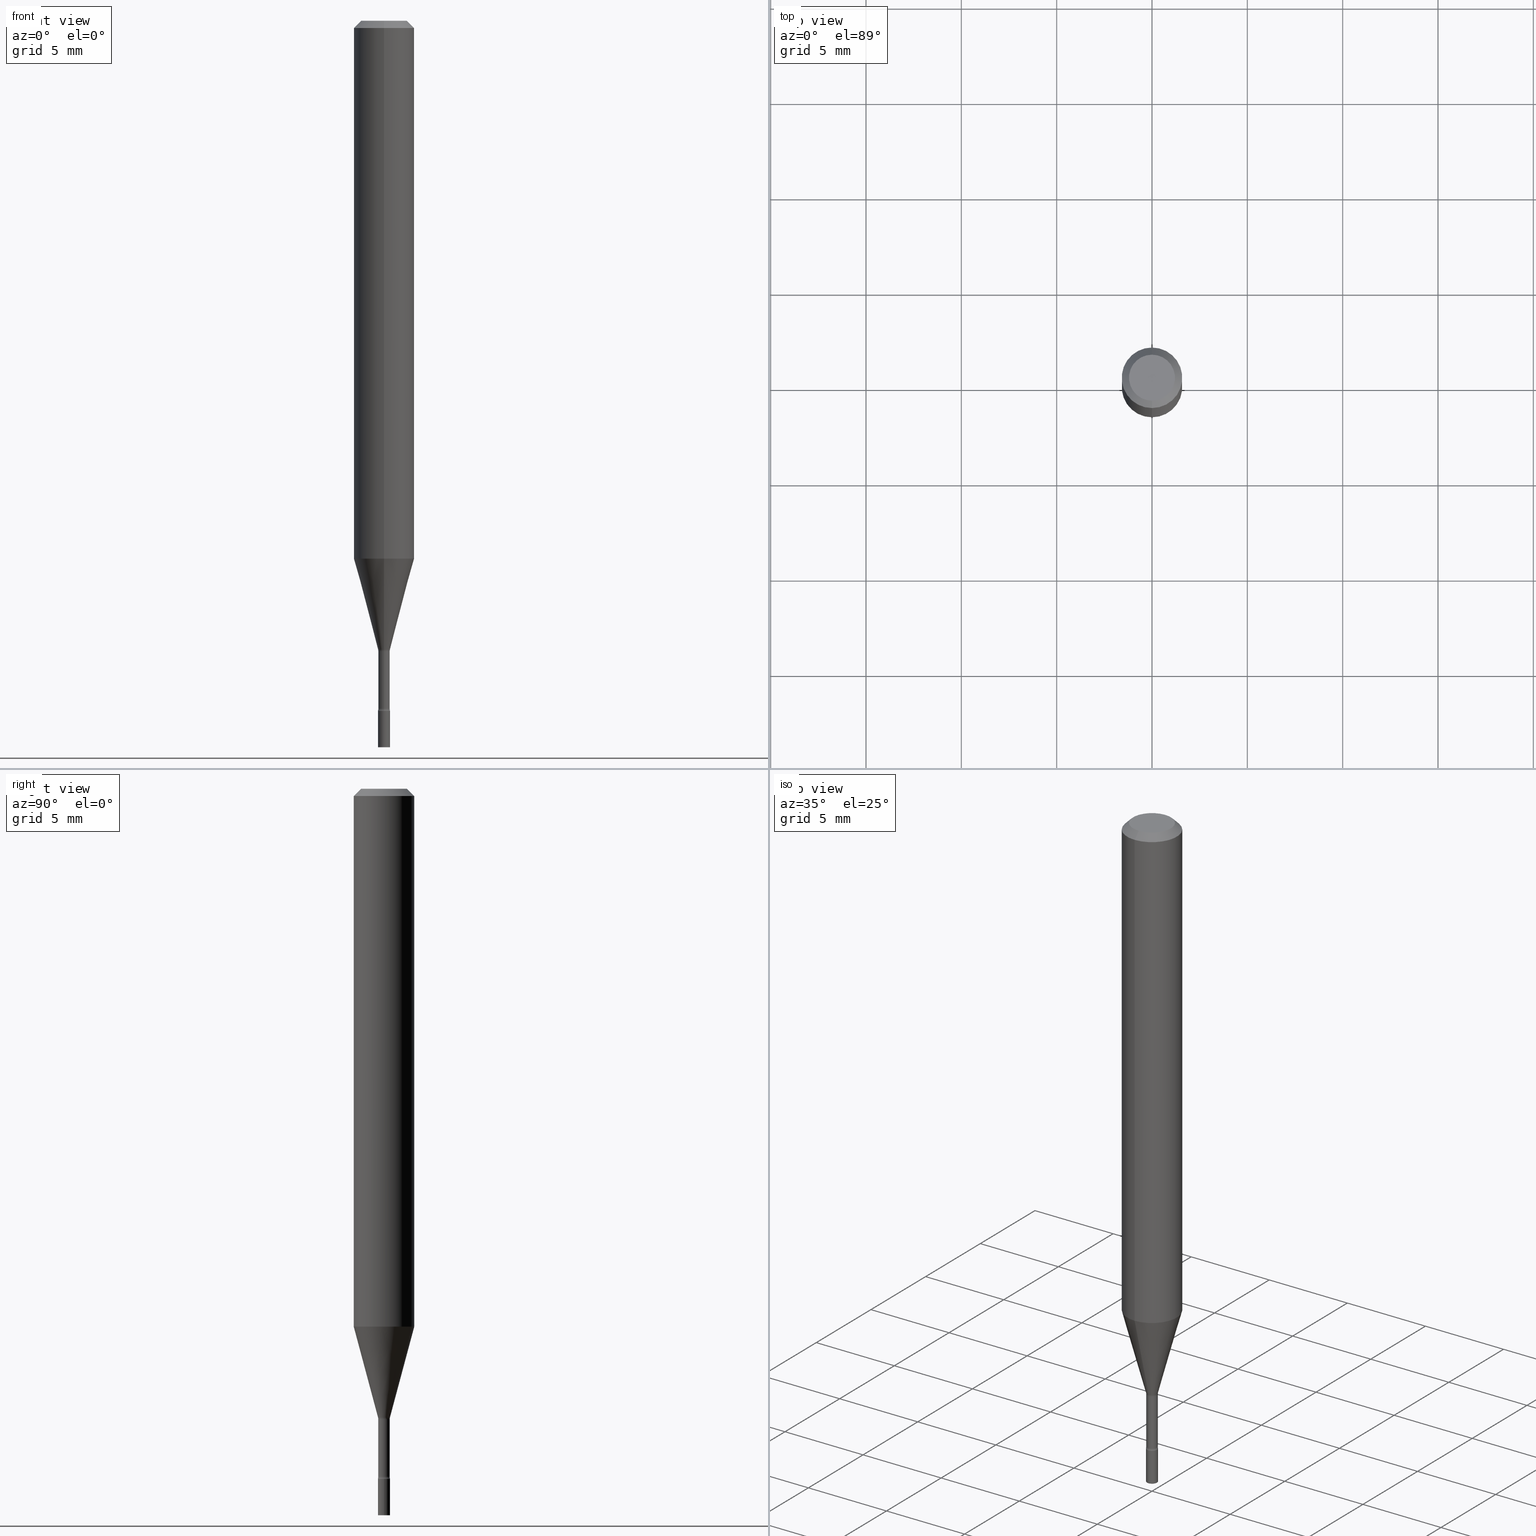
[diagram: canonical four-view strip — front | top / right | iso, engineering-drawing reading convention]
A machine part, canonical four-view strip (front | top / right | iso — engineering-drawing reading convention). The complete STEP part file that produces these views, byte-faithful:
ISO-10303-21;
HEADER;
FILE_DESCRIPTION (( 'STEP AP203' ),
    '1' );
FILE_NAME ('01314.STEP',
    '2024-03-08T21:13:38',
    ( '' ),
    ( '' ),
    'SwSTEP 2.0',
    'SolidWorks 2023',
    '' );
FILE_SCHEMA (( 'CONFIG_CONTROL_DESIGN' ));
ENDSEC;

DATA;
#1 = PERSON_AND_ORGANIZATION_ROLE ( 'creator' ) ;
#2 = ORIENTED_EDGE ( 'NONE', *, *, #278, .F. ) ;
#3 = ADVANCED_FACE ( 'NONE', ( #213 ), #429, .F. ) ;
#4 = PERSON_AND_ORGANIZATION_ROLE ( 'creator' ) ;
#5 = AXIS2_PLACEMENT_3D ( 'NONE', #328, #295, #464 ) ;
#6 = ADVANCED_FACE ( 'NONE', ( #390 ), #345, .T. ) ;
#7 = ORIENTED_EDGE ( 'NONE', *, *, #117, .T. ) ;
#8 = VERTEX_POINT ( 'NONE', #392 ) ;
#9 = DIRECTION ( 'NONE',  ( -6.982962677686265922E-15, -1.000000000000000000, 3.483106191921935554E-15 ) ) ;
#10 = VECTOR ( 'NONE', #503, 39.37007874015748143 ) ;
#11 = SECURITY_CLASSIFICATION_LEVEL ( 'unclassified' ) ;
#12 = APPLICATION_CONTEXT ( 'configuration controlled 3d designs of mechanical parts and assemblies' ) ;
#13 = APPROVAL_PERSON_ORGANIZATION ( #463, #410, #252 ) ;
#14 = ORIENTED_EDGE ( 'NONE', *, *, #180, .T. ) ;
#15 = ORIENTED_EDGE ( 'NONE', *, *, #451, .F. ) ;
#16 = ORIENTED_EDGE ( 'NONE', *, *, #207, .T. ) ;
#17 = CARTESIAN_POINT ( 'NONE',  ( 0.01250000000000000069, -5.324509041735797299E-15, -1.500000000000000222 ) ) ;
#18 = PRODUCT_DEFINITION ( 'UNKNOWN', '', #231, #190 ) ;
#19 = AXIS2_PLACEMENT_3D ( 'NONE', #509, #38, #305 ) ;
#20 = DIMENSIONAL_EXPONENTS ( 1.000000000000000000, 0.000000000000000000, 0.000000000000000000, 0.000000000000000000, 0.000000000000000000, 0.000000000000000000, 0.000000000000000000 ) ;
#21 = AXIS2_PLACEMENT_3D ( 'NONE', #339, #225, #516 ) ;
#22 = DIRECTION ( 'NONE',  ( 1.000000000000000000, -6.982962677686267499E-15, 4.876176775795936353E-29 ) ) ;
#23 = DIRECTION ( 'NONE',  ( -2.445468806185136597E-29, 3.491481338843145583E-15, 1.000000000000000000 ) ) ;
#24 = DIRECTION ( 'NONE',  ( -2.445421247527529445E-29, 3.491549445547709881E-15, 1.000000000000000000 ) ) ;
#25 = ADVANCED_FACE ( 'NONE', ( #150 ), #468, .T. ) ;
#26 = DIRECTION ( 'NONE',  ( -2.445421247527529445E-29, 3.491549445547709881E-15, 1.000000000000000000 ) ) ;
#27 = CARTESIAN_POINT ( 'NONE',  ( 3.183938729182273285E-29, -4.545820674074166863E-15, -1.301974787463811012 ) ) ;
#28 = LINE ( 'NONE', #480, #368 ) ;
#29 = CARTESIAN_POINT ( 'NONE',  ( 2.715880977445467390E-29, -3.877709302869931767E-15, -1.110598421515879952 ) ) ;
#30 = DIRECTION ( 'NONE',  ( -2.445468806185136597E-29, 3.491481338843145583E-15, 1.000000000000000000 ) ) ;
#31 = DIRECTION ( 'NONE',  ( -1.807323732225328167E-15, -0.2588190451025179084, 0.9659258262890690894 ) ) ;
#32 = DIRECTION ( 'NONE',  ( -2.445421247527529445E-29, 3.491549445547709881E-15, 1.000000000000000000 ) ) ;
#33 = AXIS2_PLACEMENT_3D ( 'NONE', #347, #226, #35 ) ;
#34 = CARTESIAN_POINT ( 'NONE',  ( 2.715880977445467390E-29, -3.877709302869931767E-15, -1.110598421515879952 ) ) ;
#35 = DIRECTION ( 'NONE',  ( -6.982962677686266711E-15, -1.000000000000000000, 3.491549445547709487E-15 ) ) ;
#36 = CC_DESIGN_APPROVAL ( #376, ( #18 ) ) ;
#37 = CARTESIAN_POINT ( 'NONE',  ( 2.656048273965166204E-16, 0.01226111260565944903, -1.298092501787273090 ) ) ;
#38 = DIRECTION ( 'NONE',  ( -2.445421247527529445E-29, 3.491549445547709881E-15, 1.000000000000000000 ) ) ;
#39 = COORDINATED_UNIVERSAL_TIME_OFFSET ( 5, 0, .BEHIND. ) ;
#40 = AXIS2_PLACEMENT_3D ( 'NONE', #140, #259, #433 ) ;
#41 = ORIENTED_EDGE ( 'NONE', *, *, #137, .F. ) ;
#42 = ADVANCED_FACE ( 'NONE', ( #103 ), #375, .T. ) ;
#43 = ORIENTED_EDGE ( 'NONE', *, *, #508, .T. ) ;
#44 = EDGE_CURVE ( 'NONE', #80, #8, #28, .T. ) ;
#45 = APPLICATION_PROTOCOL_DEFINITION ( 'international standard', 'config_control_design', 1994, #193 ) ;
#46 = ORIENTED_EDGE ( 'NONE', *, *, #137, .T. ) ;
#47 = APPROVAL_STATUS ( 'not_yet_approved' ) ;
#48 = AXIS2_PLACEMENT_3D ( 'NONE', #272, #30, #188 ) ;
#49 = TOROIDAL_SURFACE ( 'NONE', #257, 0.02675000000000001335, 0.01500000000000001679 ) ;
#50 = ORIENTED_EDGE ( 'NONE', *, *, #107, .T. ) ;
#51 = MANIFOLD_SOLID_BREP ( 'Body-Move/Copy2[1]', #248 ) ;
#52 = PERSON_AND_ORGANIZATION_ROLE ( 'design_supplier' ) ;
#53 = ORIENTED_EDGE ( 'NONE', *, *, #200, .F. ) ;
#54 = CC_DESIGN_APPROVAL ( #410, ( #402 ) ) ;
#55 = ORIENTED_EDGE ( 'NONE', *, *, #249, .F. ) ;
#56 = ORIENTED_EDGE ( 'NONE', *, *, #221, .F. ) ;
#57 = EDGE_CURVE ( 'NONE', #325, #80, #343, .T. ) ;
#58 = ORIENTED_EDGE ( 'NONE', *, *, #94, .T. ) ;
#59 = AXIS2_PLACEMENT_3D ( 'NONE', #77, #68, #224 ) ;
#60 = AXIS2_PLACEMENT_3D ( 'NONE', #71, #32, #155 ) ;
#61 = CYLINDRICAL_SURFACE ( 'NONE', #138, 0.06250000000000000000 ) ;
#62 = DIRECTION ( 'NONE',  ( -2.445421247527529445E-29, 3.491549445547709881E-15, 1.000000000000000000 ) ) ;
#63 = CARTESIAN_POINT ( 'NONE',  ( 0.000000000000000000, 0.000000000000000000, 0.000000000000000000 ) ) ;
#64 = PLANE ( 'NONE',  #240 ) ;
#65 = CARTESIAN_POINT ( 'NONE',  ( -0.01250000000000000069, 8.881784197001252816E-17, -6.148668862818633278E-31 ) ) ;
#66 = PLANE ( 'NONE',  #288 ) ;
#67 = DIRECTION ( 'NONE',  ( 1.000000000000000000, -6.982962677686294321E-15, 0.000000000000000000 ) ) ;
#68 = DIRECTION ( 'NONE',  ( 2.445421247527529445E-29, -3.491549445547709881E-15, -1.000000000000000000 ) ) ;
#69 = CIRCLE ( 'NONE', #212, 0.01500000000000002720 ) ;
#70 = APPROVAL ( #47, 'UNSPECIFIED' ) ;
#71 = CARTESIAN_POINT ( 'NONE',  ( 7.069878102696338504E-46, -1.009430542673053310E-31, -2.891067585940220905E-17 ) ) ;
#72 = AXIS2_PLACEMENT_3D ( 'NONE', #106, #177, #22 ) ;
#73 = DIRECTION ( 'NONE',  ( -1.000000000000000000, 6.982962677686265922E-15, -4.876176775795935793E-29 ) ) ;
#74 = AXIS2_PLACEMENT_3D ( 'NONE', #261, #220, #431 ) ;
#75 = CIRCLE ( 'NONE', #136, 0.06250000000000000000 ) ;
#76 = DIRECTION ( 'NONE',  ( -2.445421247527529445E-29, 3.491549445547709881E-15, 1.000000000000000000 ) ) ;
#77 = CARTESIAN_POINT ( 'NONE',  ( 3.668131871291301454E-31, -5.237324168321575718E-17, -0.01500000000000003067 ) ) ;
#78 =( GEOMETRIC_REPRESENTATION_CONTEXT ( 3 ) GLOBAL_UNCERTAINTY_ASSIGNED_CONTEXT ( ( #385 ) ) GLOBAL_UNIT_ASSIGNED_CONTEXT ( ( #486, #408, #161 ) ) REPRESENTATION_CONTEXT ( 'NONE', 'WORKASPACE' ) );
#79 = PERSON_AND_ORGANIZATION_ROLE ( 'classification_officer' ) ;
#80 = VERTEX_POINT ( 'NONE', #230 ) ;
#81 = LENGTH_MEASURE_WITH_UNIT ( LENGTH_MEASURE( 0.02539999999999999897 ), #360 );
#82 = EDGE_LOOP ( 'NONE', ( #53, #170, #46, #2 ) ) ;
#83 = EDGE_CURVE ( 'NONE', #318, #158, #399, .T. ) ;
#84 = APPROVAL_STATUS ( 'not_yet_approved' ) ;
#85 = ORIENTED_EDGE ( 'NONE', *, *, #183, .F. ) ;
#86 = APPROVAL_DATE_TIME ( #491, #70 ) ;
#87 = PERSON_AND_ORGANIZATION ( #355, #423 ) ;
#88 = AXIS2_PLACEMENT_3D ( 'NONE', #250, #171, #336 ) ;
#89 = VECTOR ( 'NONE', #469, 39.37007874015748143 ) ;
#90 = ORIENTED_EDGE ( 'NONE', *, *, #419, .F. ) ;
#91 = ORIENTED_EDGE ( 'NONE', *, *, #349, .T. ) ;
#92 = MANIFOLD_SOLID_BREP ( 'Body-Move/Copy2[2]', #274 ) ;
#93 = EDGE_LOOP ( 'NONE', ( #417, #55 ) ) ;
#94 = EDGE_CURVE ( 'NONE', #206, #210, #181, .T. ) ;
#95 = ORIENTED_EDGE ( 'NONE', *, *, #461, .F. ) ;
#96 = EDGE_CURVE ( 'NONE', #445, #277, #297, .T. ) ;
#97 = CARTESIAN_POINT ( 'NONE',  ( 0.01250000000000000069, -5.062647941322562298E-15, -1.425000000000000266 ) ) ;
#98 = CONICAL_SURFACE ( 'NONE', #59, 0.06250000000000000000, 0.7853981633974483900 ) ;
#99 = CC_DESIGN_APPROVAL ( #70, ( #231 ) ) ;
#100 = LINE ( 'NONE', #442, #10 ) ;
#101 = DIRECTION ( 'NONE',  ( -2.445421247527529445E-29, 3.491549445547709881E-15, 1.000000000000000000 ) ) ;
#102 = DIRECTION ( 'NONE',  ( -6.982962677686265922E-15, -1.000000000000000000, 3.491549445547710276E-15 ) ) ;
#103 = FACE_OUTER_BOUND ( 'NONE', #280, .T. ) ;
#104 = CARTESIAN_POINT ( 'NONE',  ( 8.728703347111501591E-17, 0.01249999999999476356, -1.500000000000000222 ) ) ;
#105 = DIRECTION ( 'NONE',  ( -1.000000000000000000, 6.982962677686265922E-15, -4.883557194083112901E-29 ) ) ;
#106 = CARTESIAN_POINT ( 'NONE',  ( 0.000000000000000000, 0.000000000000000000, 0.000000000000000000 ) ) ;
#107 = EDGE_CURVE ( 'NONE', #362, #372, #186, .T. ) ;
#108 = DIRECTION ( 'NONE',  ( 1.000000000000000000, -6.982962677686265922E-15, 4.876176775795935793E-29 ) ) ;
#109 = CYLINDRICAL_SURFACE ( 'NONE', #293, 0.01174999999999999656 ) ;
#110 = DIRECTION ( 'NONE',  ( -6.982962677686265922E-15, -1.000000000000000000, 0.000000000000000000 ) ) ;
#111 = CIRCLE ( 'NONE', #5, 0.01174999999999999482 ) ;
#112 = CIRCLE ( 'NONE', #483, 0.06250000000000000000 ) ;
#113 = CARTESIAN_POINT ( 'NONE',  ( -4.287811248607203282E-16, -0.06250000000000005551, -0.01499999999999981209 ) ) ;
#114 = DIRECTION ( 'NONE',  ( -2.445468806185136597E-29, 3.491481338843145583E-15, 1.000000000000000000 ) ) ;
#115 = FACE_OUTER_BOUND ( 'NONE', #244, .T. ) ;
#116 = PERSON_AND_ORGANIZATION ( #355, #423 ) ;
#117 = EDGE_CURVE ( 'NONE', #416, #204, #268, .T. ) ;
#118 = ORIENTED_EDGE ( 'NONE', *, *, #508, .F. ) ;
#119 = ORIENTED_EDGE ( 'NONE', *, *, #131, .F. ) ;
#120 = AXIS2_PLACEMENT_3D ( 'NONE', #219, #337, #102 ) ;
#121 = EDGE_LOOP ( 'NONE', ( #292, #119, #243, #50 ) ) ;
#122 = CIRCLE ( 'NONE', #513, 0.01226111260566398187 ) ;
#123 = LOCAL_TIME ( 16, 13, 38.00000000000000000, #159 ) ;
#124 = PERSON_AND_ORGANIZATION ( #355, #423 ) ;
#125 = ADVANCED_FACE ( 'NONE', ( #115 ), #466, .F. ) ;
#126 = APPROVAL_DATE_TIME ( #208, #410 ) ;
#127 = AXIS2_PLACEMENT_3D ( 'NONE', #434, #114, #67 ) ;
#128 = EDGE_LOOP ( 'NONE', ( #141, #460, #58, #95 ) ) ;
#129 = CALENDAR_DATE ( 2024, 8, 3 ) ;
#130 = VERTEX_POINT ( 'NONE', #273 ) ;
#131 = EDGE_CURVE ( 'NONE', #325, #416, #122, .T. ) ;
#132 = ORIENTED_EDGE ( 'NONE', *, *, #117, .F. ) ;
#133 = ADVANCED_FACE ( 'NONE', ( #340 ), #98, .T. ) ;
#134 = EDGE_CURVE ( 'NONE', #446, #322, #324, .T. ) ;
#135 = CIRCLE ( 'NONE', #436, 0.01250000000000000069 ) ;
#136 = AXIS2_PLACEMENT_3D ( 'NONE', #174, #505, #9 ) ;
#137 = EDGE_CURVE ( 'NONE', #372, #362, #449, .T. ) ;
#138 = AXIS2_PLACEMENT_3D ( 'NONE', #217, #26, #178 ) ;
#139 = DIRECTION ( 'NONE',  ( -2.445421247527529445E-29, 3.491549445547709881E-15, 1.000000000000000000 ) ) ;
#140 = CARTESIAN_POINT ( 'NONE',  ( 1.900701818158615798E-16, 0.02674999999999505204, -1.420316251501201332 ) ) ;
#141 = ORIENTED_EDGE ( 'NONE', *, *, #83, .F. ) ;
#142 = FACE_OUTER_BOUND ( 'NONE', #209, .T. ) ;
#143 = CARTESIAN_POINT ( 'NONE',  ( 4.364351673553919652E-16, 0.06249999999999995143, -0.01500000000000024751 ) ) ;
#144 = DIRECTION ( 'NONE',  ( 2.445421247527528604E-29, -3.491549445547710276E-15, -1.000000000000000000 ) ) ;
#145 = DIRECTION ( 'NONE',  ( -2.445468806185136877E-29, 3.491481338843145188E-15, 1.000000000000000000 ) ) ;
#146 = ADVANCED_FACE ( 'NONE', ( #142 ), #472, .T. ) ;
#147 = AXIS2_PLACEMENT_3D ( 'NONE', #338, #153, #314 ) ;
#148 = CARTESIAN_POINT ( 'NONE',  ( 4.440892098500899305E-16, 0.06249999999999995143, -0.01500000000000024751 ) ) ;
#149 = CARTESIAN_POINT ( 'NONE',  ( 0.000000000000000000, 0.000000000000000000, 0.000000000000000000 ) ) ;
#150 = FACE_OUTER_BOUND ( 'NONE', #256, .T. ) ;
#151 = CYLINDRICAL_SURFACE ( 'NONE', #214, 0.01250000000000000069 ) ;
#152 = CARTESIAN_POINT ( 'NONE',  ( -1.867942516280757616E-16, -0.02675000000000454445, -1.301974787463811012 ) ) ;
#153 = DIRECTION ( 'NONE',  ( -2.445421247527529445E-29, 3.491549445547709881E-15, 1.000000000000000000 ) ) ;
#154 = AXIS2_PLACEMENT_3D ( 'NONE', #63, #474, #401 ) ;
#155 = DIRECTION ( 'NONE',  ( -6.982962677686266711E-15, -1.000000000000000000, 3.491549445547709881E-15 ) ) ;
#156 = DIRECTION ( 'NONE',  ( -2.445468806185136597E-29, 3.491481338843145583E-15, 1.000000000000000000 ) ) ;
#157 = DIRECTION ( 'NONE',  ( 1.000000000000000000, 0.000000000000000000, 0.000000000000000000 ) ) ;
#158 = VERTEX_POINT ( 'NONE', #484 ) ;
#159 = COORDINATED_UNIVERSAL_TIME_OFFSET ( 5, 0, .BEHIND. ) ;
#160 = ORIENTED_EDGE ( 'NONE', *, *, #477, .F. ) ;
#161 =( NAMED_UNIT ( * ) SI_UNIT ( $, .STERADIAN. ) SOLID_ANGLE_UNIT ( ) );
#162 = ORIENTED_EDGE ( 'NONE', *, *, #57, .F. ) ;
#163 = AXIS2_PLACEMENT_3D ( 'NONE', #506, #396, #515 ) ;
#164 = CARTESIAN_POINT ( 'NONE',  ( 4.440892098500896347E-16, 0.06249999999999612116, -1.110598421515880174 ) ) ;
#165 = LOCAL_TIME ( 16, 13, 38.00000000000000000, #443 ) ;
#166 = EDGE_LOOP ( 'NONE', ( #197, #276, #470, #380 ) ) ;
#167 = PRODUCT ( '01314', '01314', '', ( #233 ) ) ;
#168 = EDGE_LOOP ( 'NONE', ( #448, #199, #14, #374 ) ) ;
#169 = EDGE_CURVE ( 'NONE', #204, #331, #100, .T. ) ;
#170 = ORIENTED_EDGE ( 'NONE', *, *, #294, .T. ) ;
#171 = DIRECTION ( 'NONE',  ( -2.445421247527529445E-29, 3.491549445547709881E-15, 1.000000000000000000 ) ) ;
#172 = APPROVAL_STATUS ( 'not_yet_approved' ) ;
#173 = DIRECTION ( 'NONE',  ( -2.445421247527529445E-29, 3.491549445547709881E-15, 1.000000000000000000 ) ) ;
#174 = CARTESIAN_POINT ( 'NONE',  ( 3.668131871291301454E-31, -5.237324168321575718E-17, -0.01500000000000003067 ) ) ;
#175 = DIRECTION ( 'NONE',  ( -6.982962677686265133E-15, -1.000000000000000000, 0.000000000000000000 ) ) ;
#176 = DIRECTION ( 'NONE',  ( -1.000000000000000000, 6.982962677686265922E-15, -4.883557194083112901E-29 ) ) ;
#177 = DIRECTION ( 'NONE',  ( -2.445468806185136597E-29, 3.491481338843145583E-15, 1.000000000000000000 ) ) ;
#178 = DIRECTION ( 'NONE',  ( -6.982962677686265922E-15, -1.000000000000000000, 3.491549445547709881E-15 ) ) ;
#179 = DIRECTION ( 'NONE',  ( 6.982962677686265922E-15, 1.000000000000000000, -3.491549445547710276E-15 ) ) ;
#180 = EDGE_CURVE ( 'NONE', #8, #331, #348, .T. ) ;
#181 = LINE ( 'NONE', #511, #400 ) ;
#182 = LINE ( 'NONE', #143, #241 ) ;
#183 = EDGE_CURVE ( 'NONE', #331, #8, #75, .T. ) ;
#184 = DIRECTION ( 'NONE',  ( -6.982962677686266711E-15, -1.000000000000000000, 3.491549445547710276E-15 ) ) ;
#185 = DIRECTION ( 'NONE',  ( -2.445468806185136877E-29, 3.491481338843145188E-15, 1.000000000000000000 ) ) ;
#186 = CIRCLE ( 'NONE', #371, 0.01175000000000000176 ) ;
#187 = LINE ( 'NONE', #113, #89 ) ;
#188 = DIRECTION ( 'NONE',  ( 1.000000000000000000, -6.982962677686294321E-15, 0.000000000000000000 ) ) ;
#189 = DIRECTION ( 'NONE',  ( -2.445421247527529445E-29, 3.491549445547709881E-15, 1.000000000000000000 ) ) ;
#190 = DESIGN_CONTEXT ( 'detailed design', #12, 'design' ) ;
#191 = DIRECTION ( 'NONE',  ( -2.438088387897960049E-29, 3.491481338843145188E-15, 1.000000000000000000 ) ) ;
#192 = DIRECTION ( 'NONE',  ( 7.105427357600997914E-15, 1.000000000000000000, 0.000000000000000000 ) ) ;
#193 = APPLICATION_CONTEXT ( 'configuration controlled 3d designs of mechanical parts and assemblies' ) ;
#194 = TOROIDAL_SURFACE ( 'NONE', #21, 0.02674999999999999947, 0.01500000000000002373 ) ;
#195 = PERSON_AND_ORGANIZATION ( #355, #423 ) ;
#196 = EDGE_LOOP ( 'NONE', ( #357, #488, #487, #364 ) ) ;
#197 = ORIENTED_EDGE ( 'NONE', *, *, #207, .F. ) ;
#198 = DATE_AND_TIME ( #363, #373 ) ;
#199 = ORIENTED_EDGE ( 'NONE', *, *, #451, .T. ) ;
#200 = EDGE_CURVE ( 'NONE', #416, #325, #313, .T. ) ;
#201 = CIRCLE ( 'NONE', #501, 0.06250000000000000000 ) ;
#202 = ORIENTED_EDGE ( 'NONE', *, *, #183, .T. ) ;
#203 = DIRECTION ( 'NONE',  ( 1.000000000000000000, -6.982962677686294321E-15, 0.000000000000000000 ) ) ;
#204 = VERTEX_POINT ( 'NONE', #164 ) ;
#205 = AXIS2_PLACEMENT_3D ( 'NONE', #238, #156, #203 ) ;
#206 = VERTEX_POINT ( 'NONE', #17 ) ;
#207 = EDGE_CURVE ( 'NONE', #277, #445, #111, .T. ) ;
#208 = DATE_AND_TIME ( #129, #298 ) ;
#209 = EDGE_LOOP ( 'NONE', ( #332, #91, #247, #85 ) ) ;
#210 = VERTEX_POINT ( 'NONE', #97 ) ;
#211 = VECTOR ( 'NONE', #185, 39.37007874015748143 ) ;
#212 = AXIS2_PLACEMENT_3D ( 'NONE', #223, #475, #192 ) ;
#213 = FACE_OUTER_BOUND ( 'NONE', #330, .T. ) ;
#214 = AXIS2_PLACEMENT_3D ( 'NONE', #440, #23, #389 ) ;
#215 = CARTESIAN_POINT ( 'NONE',  ( -1.867942516280729759E-16, -0.02675000000000497119, -1.420316251501201332 ) ) ;
#216 = DIRECTION ( 'NONE',  ( -6.982962677686265922E-15, -1.000000000000000000, 3.483106191921935554E-15 ) ) ;
#217 = CARTESIAN_POINT ( 'NONE',  ( 0.000000000000000000, 0.000000000000000000, 0.000000000000000000 ) ) ;
#218 = PRODUCT_DEFINITION_SHAPE ( 'NONE', 'NONE',  #18 ) ;
#219 = CARTESIAN_POINT ( 'NONE',  ( 8.728703347111317935E-17, 0.01249999999999502551, -1.425000000000000266 ) ) ;
#220 = DIRECTION ( 'NONE',  ( 2.445421247527529445E-29, -3.491549445547709881E-15, -1.000000000000000000 ) ) ;
#221 = EDGE_CURVE ( 'NONE', #130, #377, #519, .T. ) ;
#222 = DIRECTION ( 'NONE',  ( 1.000000000000000000, -6.982962677686294321E-15, 0.000000000000000000 ) ) ;
#223 = CARTESIAN_POINT ( 'NONE',  ( 1.900701818158585969E-16, 0.02674999999999545450, -1.301974787463811012 ) ) ;
#224 = DIRECTION ( 'NONE',  ( 6.982962677686265922E-15, 1.000000000000000000, -3.483106191921935554E-15 ) ) ;
#225 = DIRECTION ( 'NONE',  ( -2.445421247527529445E-29, 3.491549445547709881E-15, 1.000000000000000000 ) ) ;
#226 = DIRECTION ( 'NONE',  ( -2.445421247527529445E-29, 3.491549445547709881E-15, 1.000000000000000000 ) ) ;
#227 = AXIS2_PLACEMENT_3D ( 'NONE', #384, #173, #303 ) ;
#228 = DIRECTION ( 'NONE',  ( -2.445468806185136597E-29, 3.491481338843145583E-15, 1.000000000000000000 ) ) ;
#229 = CC_DESIGN_PERSON_AND_ORGANIZATION_ASSIGNMENT ( #415, #52, ( #231 ) ) ;
#230 = CARTESIAN_POINT ( 'NONE',  ( -4.364351673553645523E-16, -0.06250000000000388578, -1.110598421515879730 ) ) ;
#231 = PRODUCT_DEFINITION_FORMATION_WITH_SPECIFIED_SOURCE ( 'ANY', '', #167, .NOT_KNOWN. ) ;
#232 = EDGE_LOOP ( 'NONE', ( #462, #7, #289, #162 ) ) ;
#233 = MECHANICAL_CONTEXT ( 'NONE', #193, 'mechanical' ) ;
#234 = ORIENTED_EDGE ( 'NONE', *, *, #94, .F. ) ;
#235 = DIRECTION ( 'NONE',  ( -2.445421247527529445E-29, 3.491549445547710276E-15, 1.000000000000000000 ) ) ;
#236 = ADVANCED_FACE ( 'NONE', ( #502 ), #109, .T. ) ;
#237 = ORIENTED_EDGE ( 'NONE', *, *, #461, .T. ) ;
#238 = CARTESIAN_POINT ( 'NONE',  ( 3.668203209277704895E-29, -5.237222008264718177E-15, -1.500000000000000222 ) ) ;
#239 = ORIENTED_EDGE ( 'NONE', *, *, #83, .T. ) ;
#240 = AXIS2_PLACEMENT_3D ( 'NONE', #346, #144, #179 ) ;
#241 = VECTOR ( 'NONE', #397, 39.37007874015748143 ) ;
#242 = PERSON_AND_ORGANIZATION ( #355, #423 ) ;
#243 = ORIENTED_EDGE ( 'NONE', *, *, #278, .T. ) ;
#244 = EDGE_LOOP ( 'NONE', ( #90, #493, #246, #497 ) ) ;
#245 = DATE_AND_TIME ( #403, #165 ) ;
#246 = ORIENTED_EDGE ( 'NONE', *, *, #413, .T. ) ;
#247 = ORIENTED_EDGE ( 'NONE', *, *, #44, .T. ) ;
#248 = CLOSED_SHELL ( 'NONE', ( #25, #473, #359, #424 ) ) ;
#249 = EDGE_CURVE ( 'NONE', #318, #206, #334, .T. ) ;
#250 = CARTESIAN_POINT ( 'NONE',  ( 3.484725277726729831E-29, -4.975457959905487528E-15, -1.425000000000000266 ) ) ;
#251 = AXIS2_PLACEMENT_3D ( 'NONE', #427, #62, #216 ) ;
#252 = APPROVAL_ROLE ( '' ) ;
#253 = CIRCLE ( 'NONE', #205, 0.01250000000000000069 ) ;
#254 = ADVANCED_BREP_SHAPE_REPRESENTATION ( '01314', ( #51, #92, #350 ), #78 ) ;
#255 = CARTESIAN_POINT ( 'NONE',  ( -8.204981146277886678E-17, -0.01175000000000495440, -1.420316251501201332 ) ) ;
#256 = EDGE_LOOP ( 'NONE', ( #291, #239, #498, #234 ) ) ;
#257 = AXIS2_PLACEMENT_3D ( 'NONE', #307, #437, #478 ) ;
#258 = CARTESIAN_POINT ( 'NONE',  ( 3.183876809009142547E-29, -4.545909347286367261E-15, -1.301974787463811012 ) ) ;
#259 = DIRECTION ( 'NONE',  ( 1.000000000000000000, -7.105427357601001070E-15, 4.926316342608659899E-29 ) ) ;
#260 = DIRECTION ( 'NONE',  ( -2.445421247527529445E-29, 3.491549445547710276E-15, 1.000000000000000000 ) ) ;
#261 = CARTESIAN_POINT ( 'NONE',  ( 3.668131871291301454E-31, -5.237324168321575718E-17, -0.01500000000000003067 ) ) ;
#262 = ADVANCED_FACE ( 'NONE', ( #398 ), #481, .F. ) ;
#263 = FACE_OUTER_BOUND ( 'NONE', #166, .T. ) ;
#264 = DIRECTION ( 'NONE',  ( -2.445421247527529445E-29, 3.491549445547709881E-15, 1.000000000000000000 ) ) ;
#265 = CARTESIAN_POINT ( 'NONE',  ( 3.174382985126765064E-29, -4.532354154884992382E-15, -1.298092501787273090 ) ) ;
#266 = CIRCLE ( 'NONE', #127, 0.01250000000000000069 ) ;
#267 = DIRECTION ( 'NONE',  ( -6.982962677686269077E-15, -1.000000000000000000, 0.000000000000000000 ) ) ;
#268 = LINE ( 'NONE', #306, #421 ) ;
#269 = CIRCLE ( 'NONE', #60, 0.04749999999999999362 ) ;
#270 = CARTESIAN_POINT ( 'NONE',  ( 3.484793048813820547E-29, -4.975360907851483175E-15, -1.425000000000000266 ) ) ;
#271 = ADVANCED_FACE ( 'NONE', ( #514 ), #64, .F. ) ;
#272 = CARTESIAN_POINT ( 'NONE',  ( 3.668203209277704895E-29, -5.237222008264718177E-15, -1.500000000000000222 ) ) ;
#273 = CARTESIAN_POINT ( 'NONE',  ( -8.728703347104355005E-17, -0.01250000000000498802, -1.425000000000000266 ) ) ;
#274 = CLOSED_SHELL ( 'NONE', ( #369, #378, #405, #133, #489, #281, #6, #146, #42, #271, #3, #125, #236, #262 ) ) ;
#275 = CALENDAR_DATE ( 2024, 8, 3 ) ;
#276 = ORIENTED_EDGE ( 'NONE', *, *, #419, .T. ) ;
#277 = VERTEX_POINT ( 'NONE', #342 ) ;
#278 = EDGE_CURVE ( 'NONE', #325, #362, #382, .T. ) ;
#279 = PERSON_AND_ORGANIZATION ( #355, #423 ) ;
#280 = EDGE_LOOP ( 'NONE', ( #15, #160, #302, #202 ) ) ;
#281 = ADVANCED_FACE ( 'NONE', ( #441 ), #455, .T. ) ;
#282 = COORDINATED_UNIVERSAL_TIME_OFFSET ( 5, 0, .BEHIND. ) ;
#283 = AXIS2_PLACEMENT_3D ( 'NONE', #258, #189, #518 ) ;
#284 = ORIENTED_EDGE ( 'NONE', *, *, #57, .T. ) ;
#285 = CARTESIAN_POINT ( 'NONE',  ( -8.204981146281360131E-17, -0.01174999999999999656, 4.102570598518558258E-17 ) ) ;
#286 = ORIENTED_EDGE ( 'NONE', *, *, #107, .F. ) ;
#287 = AXIS2_PLACEMENT_3D ( 'NONE', #27, #76, #184 ) ;
#288 = AXIS2_PLACEMENT_3D ( 'NONE', #104, #482, #73 ) ;
#289 = ORIENTED_EDGE ( 'NONE', *, *, #311, .F. ) ;
#290 = SHAPE_DEFINITION_REPRESENTATION ( #218, #254 ) ;
#291 = ORIENTED_EDGE ( 'NONE', *, *, #510, .T. ) ;
#292 = ORIENTED_EDGE ( 'NONE', *, *, #294, .F. ) ;
#293 = AXIS2_PLACEMENT_3D ( 'NONE', #149, #517, #391 ) ;
#294 = EDGE_CURVE ( 'NONE', #416, #372, #69, .T. ) ;
#295 = DIRECTION ( 'NONE',  ( -2.445421247527529445E-29, 3.491549445547709881E-15, 1.000000000000000000 ) ) ;
#296 = CC_DESIGN_SECURITY_CLASSIFICATION ( #402, ( #231 ) ) ;
#297 = CIRCLE ( 'NONE', #379, 0.01174999999999999482 ) ;
#298 = LOCAL_TIME ( 16, 13, 38.00000000000000000, #499 ) ;
#299 = DIRECTION ( 'NONE',  ( -2.445421247527529445E-29, 3.491549445547710276E-15, 1.000000000000000000 ) ) ;
#300 = CARTESIAN_POINT ( 'NONE',  ( -3.773273898774340269E-16, -0.04749999999999999362, 1.369379228041140308E-16 ) ) ;
#301 = EDGE_CURVE ( 'NONE', #377, #130, #135, .T. ) ;
#302 = ORIENTED_EDGE ( 'NONE', *, *, #361, .T. ) ;
#303 = DIRECTION ( 'NONE',  ( -6.982962677686265133E-15, -1.000000000000000000, 0.000000000000000000 ) ) ;
#304 = CARTESIAN_POINT ( 'NONE',  ( 8.881784197004742293E-17, 0.01249999999999503418, -1.425000000000000266 ) ) ;
#305 = DIRECTION ( 'NONE',  ( -6.982962677686265133E-15, -1.000000000000000000, 0.000000000000000000 ) ) ;
#306 = CARTESIAN_POINT ( 'NONE',  ( 8.712044494294308837E-17, 0.01226111260565944903, -1.298092501787273090 ) ) ;
#307 = CARTESIAN_POINT ( 'NONE',  ( 3.473339087963991292E-29, -4.959007687372092628E-15, -1.420316251501201332 ) ) ;
#308 = DIRECTION ( 'NONE',  ( -6.982962677686265922E-15, -1.000000000000000000, 4.370956789862821150E-15 ) ) ;
#309 = DIRECTION ( 'NONE',  ( -2.445421247527529445E-29, 3.491549445547709881E-15, 1.000000000000000000 ) ) ;
#310 = PRODUCT_RELATED_PRODUCT_CATEGORY ( 'detail', '', ( #167 ) ) ;
#311 = EDGE_CURVE ( 'NONE', #80, #204, #201, .T. ) ;
#312 = DIRECTION ( 'NONE',  ( -6.982962677686265133E-15, -1.000000000000000000, 0.000000000000000000 ) ) ;
#313 = CIRCLE ( 'NONE', #412, 0.01226111260566398187 ) ;
#314 = DIRECTION ( 'NONE',  ( -6.982962677686265922E-15, -1.000000000000000000, 3.491549445547709881E-15 ) ) ;
#315 = CIRCLE ( 'NONE', #40, 0.01500000000000001853 ) ;
#316 = CARTESIAN_POINT ( 'NONE',  ( 3.484793048813820547E-29, -4.975360907851483175E-15, -1.425000000000000266 ) ) ;
#317 = EDGE_CURVE ( 'NONE', #210, #158, #266, .T. ) ;
#318 = VERTEX_POINT ( 'NONE', #394 ) ;
#319 = DIRECTION ( 'NONE',  ( 0.000000000000000000, 0.000000000000000000, 1.000000000000000000 ) ) ;
#320 = EDGE_CURVE ( 'NONE', #277, #372, #354, .T. ) ;
#321 = APPROVAL_ROLE ( '' ) ;
#322 = VERTEX_POINT ( 'NONE', #430 ) ;
#323 = APPROVAL_DATE_TIME ( #198, #376 ) ;
#324 = CIRCLE ( 'NONE', #163, 0.04749999999999999362 ) ;
#325 = VERTEX_POINT ( 'NONE', #465 ) ;
#326 = VECTOR ( 'NONE', #235, 39.37007874015748143 ) ;
#327 = CC_DESIGN_DATE_AND_TIME_ASSIGNMENT ( #245, #496, ( #402 ) ) ;
#328 = CARTESIAN_POINT ( 'NONE',  ( 3.473271539629692277E-29, -4.959104420431421376E-15, -1.420316251501201332 ) ) ;
#329 = DATE_AND_TIME ( #275, #123 ) ;
#330 = EDGE_LOOP ( 'NONE', ( #56, #494 ) ) ;
#331 = VERTEX_POINT ( 'NONE', #148 ) ;
#332 = ORIENTED_EDGE ( 'NONE', *, *, #169, .F. ) ;
#333 = CC_DESIGN_PERSON_AND_ORGANIZATION_ASSIGNMENT ( #87, #4, ( #18 ) ) ;
#334 = CIRCLE ( 'NONE', #48, 0.01250000000000000069 ) ;
#335 = VECTOR ( 'NONE', #260, 39.37007874015748143 ) ;
#336 = DIRECTION ( 'NONE',  ( -6.982962677686265133E-15, -1.000000000000000000, 0.000000000000000000 ) ) ;
#337 = DIRECTION ( 'NONE',  ( -2.445421247527528604E-29, 3.491549445547710276E-15, 1.000000000000000000 ) ) ;
#338 = CARTESIAN_POINT ( 'NONE',  ( 0.000000000000000000, 0.000000000000000000, 0.000000000000000000 ) ) ;
#339 = CARTESIAN_POINT ( 'NONE',  ( 3.183938729182273285E-29, -4.545820674074166863E-15, -1.301974787463811012 ) ) ;
#340 = FACE_OUTER_BOUND ( 'NONE', #168, .T. ) ;
#341 = LINE ( 'NONE', #285, #326 ) ;
#342 = CARTESIAN_POINT ( 'NONE',  ( 8.615330671094698324E-17, 0.01174999999999503525, -1.420316251501201332 ) ) ;
#343 = LINE ( 'NONE', #435, #459 ) ;
#344 = CYLINDRICAL_SURFACE ( 'NONE', #154, 0.01174999999999999656 ) ;
#345 = CONICAL_SURFACE ( 'NONE', #227, 0.01226111260566398187, 0.2617993877991499629 ) ;
#346 = CARTESIAN_POINT ( 'NONE',  ( 3.316907271900976096E-16, 0.04749999999999999362, -1.803039365932173043E-16 ) ) ;
#347 = CARTESIAN_POINT ( 'NONE',  ( 3.473339087963991292E-29, -4.959007687372092628E-15, -1.420316251501201332 ) ) ;
#348 = CIRCLE ( 'NONE', #251, 0.06250000000000000000 ) ;
#349 = EDGE_CURVE ( 'NONE', #204, #80, #112, .T. ) ;
#350 = AXIS2_PLACEMENT_3D ( 'NONE', #453, #319, #157 ) ;
#351 = DIRECTION ( 'NONE',  ( -2.445421247527529445E-29, 3.491549445547709881E-15, 1.000000000000000000 ) ) ;
#352 = DIRECTION ( 'NONE',  ( -6.982962677686265922E-15, -1.000000000000000000, 0.000000000000000000 ) ) ;
#353 = FACE_OUTER_BOUND ( 'NONE', #93, .T. ) ;
#354 = LINE ( 'NONE', #471, #335 ) ;
#355 = PERSON ( 'UNSPECIFIED', 'UNSPECIFIED', 'UNSPECIFIED', ('UNSPECIFIED'), ('UNSPECIFIED'), ('UNSPECIFIED') ) ;
#356 = DATE_TIME_ROLE ( 'creation_date' ) ;
#357 = ORIENTED_EDGE ( 'NONE', *, *, #311, .T. ) ;
#358 = EDGE_LOOP ( 'NONE', ( #404, #418 ) ) ;
#359 = ADVANCED_FACE ( 'NONE', ( #507 ), #151, .T. ) ;
#360 =( LENGTH_UNIT ( ) NAMED_UNIT ( * ) SI_UNIT ( $, .METRE. ) );
#361 = EDGE_CURVE ( 'NONE', #322, #331, #182, .T. ) ;
#362 = VERTEX_POINT ( 'NONE', #485 ) ;
#363 = CALENDAR_DATE ( 2024, 8, 3 ) ;
#364 = ORIENTED_EDGE ( 'NONE', *, *, #44, .F. ) ;
#365 = AXIS2_PLACEMENT_3D ( 'NONE', #152, #105, #267 ) ;
#366 = EDGE_LOOP ( 'NONE', ( #452, #454, #286, #118 ) ) ;
#367 = CC_DESIGN_PERSON_AND_ORGANIZATION_ASSIGNMENT ( #116, #79, ( #402 ) ) ;
#368 = VECTOR ( 'NONE', #299, 39.37007874015748143 ) ;
#369 = ADVANCED_FACE ( 'NONE', ( #386 ), #194, .F. ) ;
#370 = APPROVAL_ROLE ( '' ) ;
#371 = AXIS2_PLACEMENT_3D ( 'NONE', #476, #309, #110 ) ;
#372 = VERTEX_POINT ( 'NONE', #393 ) ;
#373 = LOCAL_TIME ( 16, 13, 38.00000000000000000, #39 ) ;
#374 = ORIENTED_EDGE ( 'NONE', *, *, #361, .F. ) ;
#375 = CONICAL_SURFACE ( 'NONE', #74, 0.06250000000000000000, 0.7853981633974483900 ) ;
#376 = APPROVAL ( #84, 'UNSPECIFIED' ) ;
#377 = VERTEX_POINT ( 'NONE', #304 ) ;
#378 = ADVANCED_FACE ( 'NONE', ( #504 ), #344, .T. ) ;
#379 = AXIS2_PLACEMENT_3D ( 'NONE', #388, #24, #352 ) ;
#380 = ORIENTED_EDGE ( 'NONE', *, *, #413, .F. ) ;
#381 = DIRECTION ( 'NONE',  ( -6.982962677686265133E-15, -1.000000000000000000, 0.000000000000000000 ) ) ;
#382 = CIRCLE ( 'NONE', #365, 0.01500000000000001853 ) ;
#383 = AXIS2_PLACEMENT_3D ( 'NONE', #316, #228, #222 ) ;
#384 = CARTESIAN_POINT ( 'NONE',  ( 3.174382985126765064E-29, -4.532354154884992382E-15, -1.298092501787273090 ) ) ;
#385 = UNCERTAINTY_MEASURE_WITH_UNIT (LENGTH_MEASURE( 1.000000000000000082E-05 ), #486, 'distance_accuracy_value', 'NONE');
#386 = FACE_OUTER_BOUND ( 'NONE', #82, .T. ) ;
#387 = ORIENTED_EDGE ( 'NONE', *, *, #320, .F. ) ;
#388 = CARTESIAN_POINT ( 'NONE',  ( 3.473271539629692277E-29, -4.959104420431421376E-15, -1.420316251501201332 ) ) ;
#389 = DIRECTION ( 'NONE',  ( 1.000000000000000000, -6.982962677686267499E-15, 4.876176775795936353E-29 ) ) ;
#390 = FACE_OUTER_BOUND ( 'NONE', #411, .T. ) ;
#391 = DIRECTION ( 'NONE',  ( -6.982962677686265922E-15, -1.000000000000000000, 3.491549445547710276E-15 ) ) ;
#392 = CARTESIAN_POINT ( 'NONE',  ( -4.364351673553912750E-16, -0.06250000000000005551, -0.01499999999999981209 ) ) ;
#393 = CARTESIAN_POINT ( 'NONE',  ( 8.348877145184651889E-17, 0.01174999999999545505, -1.301974787463811012 ) ) ;
#394 = CARTESIAN_POINT ( 'NONE',  ( -0.01250000000000000069, -5.017473616088089257E-15, -1.500000000000000222 ) ) ;
#395 = CC_DESIGN_DATE_AND_TIME_ASSIGNMENT ( #329, #356, ( #18 ) ) ;
#396 = DIRECTION ( 'NONE',  ( -2.445421247527529445E-29, 3.491549445547709881E-15, 1.000000000000000000 ) ) ;
#397 = DIRECTION ( 'NONE',  ( 4.937700262164548042E-15, 0.7071067811865451302, -0.7071067811865499042 ) ) ;
#398 = FACE_OUTER_BOUND ( 'NONE', #121, .T. ) ;
#399 = LINE ( 'NONE', #65, #211 ) ;
#400 = VECTOR ( 'NONE', #145, 39.37007874015748143 ) ;
#401 = DIRECTION ( 'NONE',  ( -6.982962677686265922E-15, -1.000000000000000000, 3.491549445547710276E-15 ) ) ;
#402 = SECURITY_CLASSIFICATION ( '', '', #11 ) ;
#403 = CALENDAR_DATE ( 2024, 8, 3 ) ;
#404 = ORIENTED_EDGE ( 'NONE', *, *, #477, .T. ) ;
#405 = ADVANCED_FACE ( 'NONE', ( #263 ), #49, .F. ) ;
#406 = APPLICATION_PROTOCOL_DEFINITION ( 'international standard', 'config_control_design', 1994, #12 ) ;
#407 = ORIENTED_EDGE ( 'NONE', *, *, #200, .T. ) ;
#408 =( NAMED_UNIT ( * ) PLANE_ANGLE_UNIT ( ) SI_UNIT ( $, .RADIAN. ) );
#409 = EDGE_LOOP ( 'NONE', ( #490, #237 ) ) ;
#410 = APPROVAL ( #172, 'UNSPECIFIED' ) ;
#411 = EDGE_LOOP ( 'NONE', ( #132, #407, #284, #420 ) ) ;
#412 = AXIS2_PLACEMENT_3D ( 'NONE', #457, #422, #381 ) ;
#413 = EDGE_CURVE ( 'NONE', #445, #130, #425, .T. ) ;
#414 = CIRCLE ( 'NONE', #383, 0.01250000000000000069 ) ;
#415 = PERSON_AND_ORGANIZATION ( #355, #423 ) ;
#416 = VERTEX_POINT ( 'NONE', #37 ) ;
#417 = ORIENTED_EDGE ( 'NONE', *, *, #510, .F. ) ;
#418 = ORIENTED_EDGE ( 'NONE', *, *, #134, .T. ) ;
#419 = EDGE_CURVE ( 'NONE', #277, #377, #315, .T. ) ;
#420 = ORIENTED_EDGE ( 'NONE', *, *, #349, .F. ) ;
#421 = VECTOR ( 'NONE', #439, 39.37007874015748854 ) ;
#422 = DIRECTION ( 'NONE',  ( -2.445421247527529445E-29, 3.491549445547709881E-15, 1.000000000000000000 ) ) ;
#423 = ORGANIZATION ( 'UNSPECIFIED', 'UNSPECIFIED', '' ) ;
#424 = ADVANCED_FACE ( 'NONE', ( #353 ), #66, .T. ) ;
#425 = CIRCLE ( 'NONE', #495, 0.01500000000000001853 ) ;
#426 = FACE_OUTER_BOUND ( 'NONE', #196, .T. ) ;
#427 = CARTESIAN_POINT ( 'NONE',  ( 3.668131871291301454E-31, -5.237324168321575718E-17, -0.01500000000000003067 ) ) ;
#428 = DIRECTION ( 'NONE',  ( -6.982962677686265922E-15, -1.000000000000000000, 4.370956789862821150E-15 ) ) ;
#429 = PLANE ( 'NONE',  #120 ) ;
#430 = CARTESIAN_POINT ( 'NONE',  ( 3.840629472727447874E-16, 0.04749999999999999362, -1.947592745229183872E-16 ) ) ;
#431 = DIRECTION ( 'NONE',  ( 6.982962677686265922E-15, 1.000000000000000000, -3.483106191921935554E-15 ) ) ;
#432 = CC_DESIGN_PERSON_AND_ORGANIZATION_ASSIGNMENT ( #195, #447, ( #167 ) ) ;
#433 = DIRECTION ( 'NONE',  ( 7.105427357600998703E-15, 1.000000000000000000, 0.000000000000000000 ) ) ;
#434 = CARTESIAN_POINT ( 'NONE',  ( 3.484793048813820547E-29, -4.975360907851483175E-15, -1.425000000000000266 ) ) ;
#435 = CARTESIAN_POINT ( 'NONE',  ( -8.561889171222843884E-17, -0.01226111260566851470, -1.298092501787273090 ) ) ;
#436 = AXIS2_PLACEMENT_3D ( 'NONE', #438, #264, #479 ) ;
#437 = DIRECTION ( 'NONE',  ( -2.445421247527529445E-29, 3.491549445547709881E-15, 1.000000000000000000 ) ) ;
#438 = CARTESIAN_POINT ( 'NONE',  ( 3.484725277726729831E-29, -4.975457959905487528E-15, -1.425000000000000266 ) ) ;
#439 = DIRECTION ( 'NONE',  ( 1.839019923739597949E-15, 0.2588190451025246253, 0.9659258262890670910 ) ) ;
#440 = CARTESIAN_POINT ( 'NONE',  ( 0.000000000000000000, 0.000000000000000000, 0.000000000000000000 ) ) ;
#441 = FACE_OUTER_BOUND ( 'NONE', #232, .T. ) ;
#442 = CARTESIAN_POINT ( 'NONE',  ( 4.440892098500625669E-16, 0.06250000000000000000, -2.182218403467318676E-16 ) ) ;
#443 = COORDINATED_UNIVERSAL_TIME_OFFSET ( 5, 0, .BEHIND. ) ;
#444 = LOCAL_TIME ( 16, 13, 38.00000000000000000, #282 ) ;
#445 = VERTEX_POINT ( 'NONE', #255 ) ;
#446 = VERTEX_POINT ( 'NONE', #300 ) ;
#447 = PERSON_AND_ORGANIZATION_ROLE ( 'design_owner' ) ;
#448 = ORIENTED_EDGE ( 'NONE', *, *, #134, .F. ) ;
#449 = CIRCLE ( 'NONE', #283, 0.01175000000000000176 ) ;
#450 = CALENDAR_DATE ( 2024, 8, 3 ) ;
#451 = EDGE_CURVE ( 'NONE', #446, #8, #187, .T. ) ;
#452 = ORIENTED_EDGE ( 'NONE', *, *, #96, .T. ) ;
#453 = CARTESIAN_POINT ( 'NONE',  ( 0.000000000000000000, 0.000000000000000000, 0.000000000000000000 ) ) ;
#454 = ORIENTED_EDGE ( 'NONE', *, *, #320, .T. ) ;
#455 = CONICAL_SURFACE ( 'NONE', #19, 0.01226111260566398187, 0.2617993877991499629 ) ;
#456 = AXIS2_PLACEMENT_3D ( 'NONE', #270, #191, #108 ) ;
#457 = CARTESIAN_POINT ( 'NONE',  ( 3.174382985126765064E-29, -4.532354154884992382E-15, -1.298092501787273090 ) ) ;
#458 = EDGE_LOOP ( 'NONE', ( #387, #16, #43, #41 ) ) ;
#459 = VECTOR ( 'NONE', #31, 39.37007874015748143 ) ;
#460 = ORIENTED_EDGE ( 'NONE', *, *, #249, .T. ) ;
#461 = EDGE_CURVE ( 'NONE', #158, #210, #414, .T. ) ;
#462 = ORIENTED_EDGE ( 'NONE', *, *, #131, .T. ) ;
#463 = PERSON_AND_ORGANIZATION ( #355, #423 ) ;
#464 = DIRECTION ( 'NONE',  ( -6.982962677686265922E-15, -1.000000000000000000, 0.000000000000000000 ) ) ;
#465 = CARTESIAN_POINT ( 'NONE',  ( -8.561889171222843884E-17, -0.01226111260566851470, -1.298092501787273090 ) ) ;
#466 = TOROIDAL_SURFACE ( 'NONE', #33, 0.02675000000000001335, 0.01500000000000001679 ) ;
#467 = APPROVAL_PERSON_ORGANIZATION ( #242, #70, #321 ) ;
#468 = CYLINDRICAL_SURFACE ( 'NONE', #72, 0.01250000000000000069 ) ;
#469 = DIRECTION ( 'NONE',  ( -4.851104656540964275E-15, -0.7071067811865500152, -0.7071067811865450192 ) ) ;
#470 = ORIENTED_EDGE ( 'NONE', *, *, #301, .T. ) ;
#471 = CARTESIAN_POINT ( 'NONE',  ( 8.348877145181173506E-17, 0.01174999999999999656, -4.102570598518558258E-17 ) ) ;
#472 = CYLINDRICAL_SURFACE ( 'NONE', #147, 0.06250000000000000000 ) ;
#473 = ADVANCED_FACE ( 'NONE', ( #520 ), #512, .T. ) ;
#474 = DIRECTION ( 'NONE',  ( -2.445421247527529445E-29, 3.491549445547709881E-15, 1.000000000000000000 ) ) ;
#475 = DIRECTION ( 'NONE',  ( 1.000000000000000000, -7.105427357601001070E-15, 4.926316342608659899E-29 ) ) ;
#476 = CARTESIAN_POINT ( 'NONE',  ( 3.183876809009142547E-29, -4.545909347286367261E-15, -1.301974787463811012 ) ) ;
#477 = EDGE_CURVE ( 'NONE', #322, #446, #269, .T. ) ;
#478 = DIRECTION ( 'NONE',  ( -6.982962677686266711E-15, -1.000000000000000000, 3.491549445547709487E-15 ) ) ;
#479 = DIRECTION ( 'NONE',  ( -6.982962677686265133E-15, -1.000000000000000000, 0.000000000000000000 ) ) ;
#480 = CARTESIAN_POINT ( 'NONE',  ( -4.364351673553916201E-16, -0.06250000000000000000, 2.182218403467318676E-16 ) ) ;
#481 = TOROIDAL_SURFACE ( 'NONE', #287, 0.02674999999999999947, 0.01500000000000002373 ) ;
#482 = DIRECTION ( 'NONE',  ( 2.438088387897960049E-29, -3.491481338843145188E-15, -1.000000000000000000 ) ) ;
#483 = AXIS2_PLACEMENT_3D ( 'NONE', #29, #101, #428 ) ;
#484 = CARTESIAN_POINT ( 'NONE',  ( -0.01250000000000000069, -5.017473616088089257E-15, -1.425000000000000266 ) ) ;
#485 = CARTESIAN_POINT ( 'NONE',  ( -8.204981146278178803E-17, -0.01175000000000454674, -1.301974787463811012 ) ) ;
#486 =( CONVERSION_BASED_UNIT ( 'INCH', #81 ) LENGTH_UNIT ( ) NAMED_UNIT ( #20 ) );
#487 = ORIENTED_EDGE ( 'NONE', *, *, #180, .F. ) ;
#488 = ORIENTED_EDGE ( 'NONE', *, *, #169, .T. ) ;
#489 = ADVANCED_FACE ( 'NONE', ( #426 ), #61, .T. ) ;
#490 = ORIENTED_EDGE ( 'NONE', *, *, #317, .T. ) ;
#491 = DATE_AND_TIME ( #450, #444 ) ;
#492 = APPROVAL_PERSON_ORGANIZATION ( #279, #376, #370 ) ;
#493 = ORIENTED_EDGE ( 'NONE', *, *, #96, .F. ) ;
#494 = ORIENTED_EDGE ( 'NONE', *, *, #301, .F. ) ;
#495 = AXIS2_PLACEMENT_3D ( 'NONE', #215, #176, #312 ) ;
#496 = DATE_TIME_ROLE ( 'classification_date' ) ;
#497 = ORIENTED_EDGE ( 'NONE', *, *, #221, .T. ) ;
#498 = ORIENTED_EDGE ( 'NONE', *, *, #317, .F. ) ;
#499 = COORDINATED_UNIVERSAL_TIME_OFFSET ( 5, 0, .BEHIND. ) ;
#500 = CC_DESIGN_PERSON_AND_ORGANIZATION_ASSIGNMENT ( #124, #1, ( #231 ) ) ;
#501 = AXIS2_PLACEMENT_3D ( 'NONE', #34, #351, #308 ) ;
#502 = FACE_OUTER_BOUND ( 'NONE', #458, .T. ) ;
#503 = DIRECTION ( 'NONE',  ( -2.445421247527529445E-29, 3.491549445547710276E-15, 1.000000000000000000 ) ) ;
#504 = FACE_OUTER_BOUND ( 'NONE', #366, .T. ) ;
#505 = DIRECTION ( 'NONE',  ( -2.445421247527529445E-29, 3.491549445547709881E-15, 1.000000000000000000 ) ) ;
#506 = CARTESIAN_POINT ( 'NONE',  ( 7.069878102696338504E-46, -1.009430542673053310E-31, -2.891067585940220905E-17 ) ) ;
#507 = FACE_OUTER_BOUND ( 'NONE', #128, .T. ) ;
#508 = EDGE_CURVE ( 'NONE', #445, #362, #341, .T. ) ;
#509 = CARTESIAN_POINT ( 'NONE',  ( 3.174382985126765064E-29, -4.532354154884992382E-15, -1.298092501787273090 ) ) ;
#510 = EDGE_CURVE ( 'NONE', #206, #318, #253, .T. ) ;
#511 = CARTESIAN_POINT ( 'NONE',  ( 0.01250000000000000069, -8.728703347107834621E-17, 6.095220969744920617E-31 ) ) ;
#512 = PLANE ( 'NONE',  #456 ) ;
#513 = AXIS2_PLACEMENT_3D ( 'NONE', #265, #139, #175 ) ;
#514 = FACE_OUTER_BOUND ( 'NONE', #358, .T. ) ;
#515 = DIRECTION ( 'NONE',  ( -6.982962677686266711E-15, -1.000000000000000000, 3.491549445547709881E-15 ) ) ;
#516 = DIRECTION ( 'NONE',  ( -6.982962677686266711E-15, -1.000000000000000000, 3.491549445547710276E-15 ) ) ;
#517 = DIRECTION ( 'NONE',  ( -2.445421247527529445E-29, 3.491549445547709881E-15, 1.000000000000000000 ) ) ;
#518 = DIRECTION ( 'NONE',  ( -6.982962677686265922E-15, -1.000000000000000000, 0.000000000000000000 ) ) ;
#519 = CIRCLE ( 'NONE', #88, 0.01250000000000000069 ) ;
#520 = FACE_OUTER_BOUND ( 'NONE', #409, .T. ) ;
ENDSEC;
END-ISO-10303-21;
